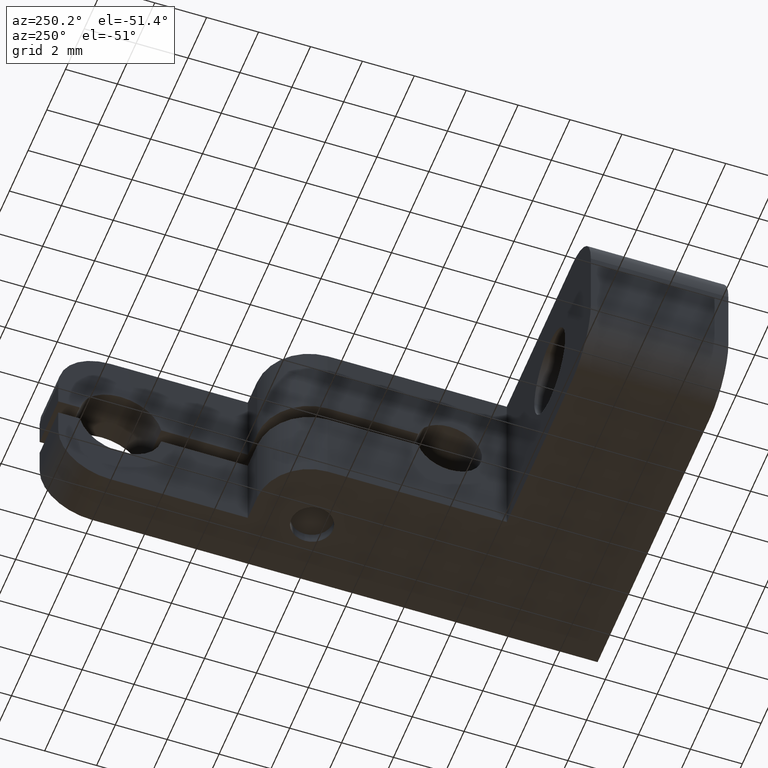
[diagram: clean part render]
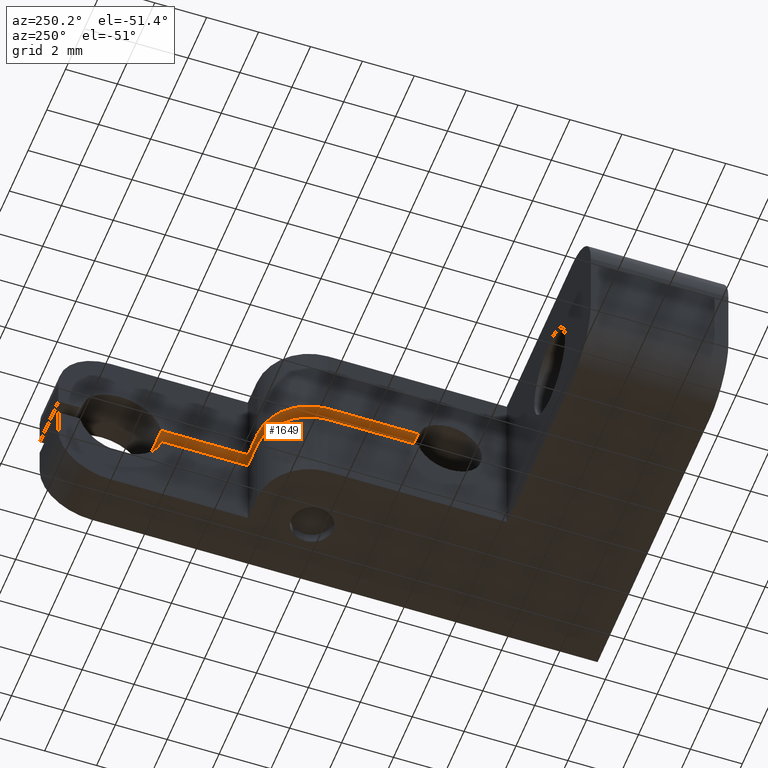
[diagram: same view with one face highlighted and labeled with its STEP entity id]
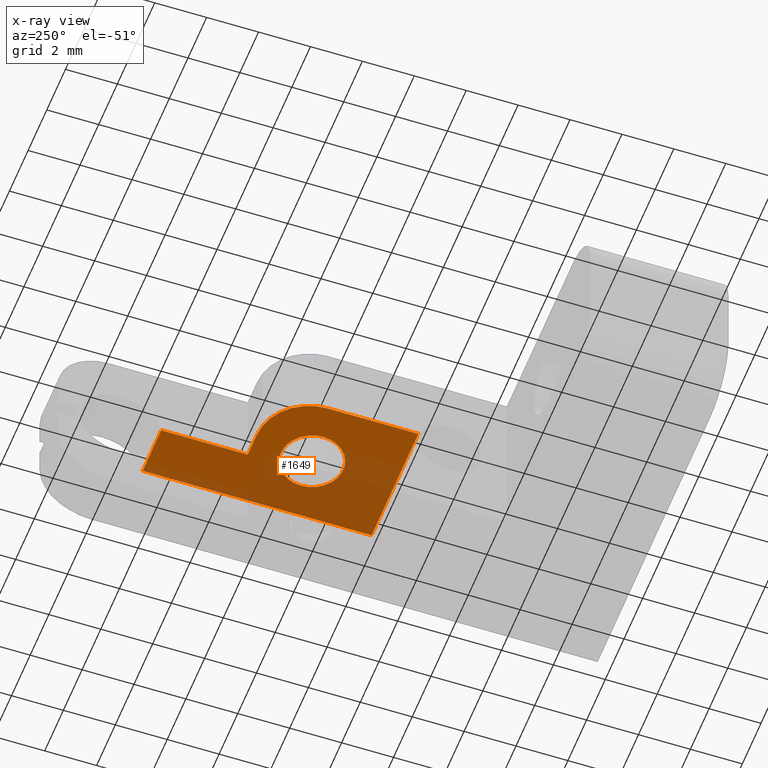
[diagram: x-ray of the same camera — body ghosted, the highlighted face saturated]
A machine part, auxiliary view. The second image highlights one B-rep face of the part: STEP entity #1649.
The next image is the same camera in x-ray: the body ghosted, the highlighted face saturated — about 47% of this face is hidden behind the body in this view.
In plain terms, the highlighted planar face has unit normal (0, -0, 1).
Its self-contained STEP definition (entity closure, byte-faithful):
#1 = EDGE_CURVE ( 'NONE', #49, #179, #164, .T. ) ;
#8 = ORIENTED_EDGE ( 'NONE', *, *, #1148, .T. ) ;
#25 = CARTESIAN_POINT ( 'NONE',  ( -5.000000000000000888, 12.19999999999999929, 0.3199999999999991740 ) ) ;
#49 = VERTEX_POINT ( 'NONE', #1328 ) ;
#103 = CARTESIAN_POINT ( 'NONE',  ( -14.00099999999999945, 17.53232656461877070, 0.3199999999999997291 ) ) ;
#117 = EDGE_LOOP ( 'NONE', ( #8, #363, #1947, #1785, #1538, #842, #982 ) ) ;
#150 = DIRECTION ( 'NONE',  ( 0.000000000000000000, -1.000000000000000000, -1.356136956839420588E-16 ) ) ;
#157 = CARTESIAN_POINT ( 'NONE',  ( -1.999999999999998224, 14.19999999999999929, 0.3199999999999994515 ) ) ;
#164 = LINE ( 'NONE', #1851, #2059 ) ;
#179 = VERTEX_POINT ( 'NONE', #2108 ) ;
#245 = CARTESIAN_POINT ( 'NONE',  ( -2.500000000000000444, 11.90000000000000036, 0.3199999999999991185 ) ) ;
#258 = CIRCLE ( 'NONE', #1379, 2.000000000000000000 ) ;
#270 = CARTESIAN_POINT ( 'NONE',  ( -14.00099999999999945, 14.19999999999999929, 0.3199999999999994515 ) ) ;
#363 = ORIENTED_EDGE ( 'NONE', *, *, #1786, .T. ) ;
#368 = CARTESIAN_POINT ( 'NONE',  ( -14.00099999999999945, 8.708345976945343736, 0.3199999999999985634 ) ) ;
#399 = VERTEX_POINT ( 'NONE', #1470 ) ;
#443 = DIRECTION ( 'NONE',  ( 0.000000000000000000, -1.000000000000000000, -1.356136956839420588E-16 ) ) ;
#466 = DIRECTION ( 'NONE',  ( 0.000000000000000000, -1.356136956839420588E-16, 1.000000000000000000 ) ) ;
#516 = AXIS2_PLACEMENT_3D ( 'NONE', #742, #905, #1259 ) ;
#563 = CARTESIAN_POINT ( 'NONE',  ( -5.000000000000000888, 8.708345976945343736, 0.3199999999999985079 ) ) ;
#593 = ORIENTED_EDGE ( 'NONE', *, *, #706, .T. ) ;
#597 = VERTEX_POINT ( 'NONE', #563 ) ;
#610 = EDGE_CURVE ( 'NONE', #597, #179, #1707, .T. ) ;
#617 = VECTOR ( 'NONE', #1921, 1000.000000000000000 ) ;
#653 = DIRECTION ( 'NONE',  ( -1.000000000000000000, 0.000000000000000000, 0.000000000000000000 ) ) ;
#654 = CIRCLE ( 'NONE', #516, 1.199999999999999734 ) ;
#671 = DIRECTION ( 'NONE',  ( -1.188166764367676342E-16, 1.000000000000000000, 1.356136956839420588E-16 ) ) ;
#706 = EDGE_CURVE ( 'NONE', #1810, #1112, #654, .T. ) ;
#742 = CARTESIAN_POINT ( 'NONE',  ( -2.500000000000000444, 11.90000000000000036, 0.3199999999999991185 ) ) ;
#750 = EDGE_CURVE ( 'NONE', #399, #1385, #1802, .T. ) ;
#768 = VECTOR ( 'NONE', #671, 1000.000000000000000 ) ;
#777 = VERTEX_POINT ( 'NONE', #1792 ) ;
#813 = VECTOR ( 'NONE', #1653, 1000.000000000000000 ) ;
#840 = CARTESIAN_POINT ( 'NONE',  ( -2.000000000000000000, 21.50000000000000000, 0.3200000000000003952 ) ) ;
#842 = ORIENTED_EDGE ( 'NONE', *, *, #1, .T. ) ;
#860 = DIRECTION ( 'NONE',  ( -0.000000000000000000, 1.356136956839420588E-16, -1.000000000000000000 ) ) ;
#905 = DIRECTION ( 'NONE',  ( 0.000000000000000000, -1.356136956839420588E-16, 1.000000000000000000 ) ) ;
#935 = VERTEX_POINT ( 'NONE', #25 ) ;
#982 = ORIENTED_EDGE ( 'NONE', *, *, #610, .F. ) ;
#985 = DIRECTION ( 'NONE',  ( 0.000000000000000000, -1.000000000000000000, -1.355252715606880789E-16 ) ) ;
#1027 = EDGE_CURVE ( 'NONE', #1112, #1810, #1863, .T. ) ;
#1094 = AXIS2_PLACEMENT_3D ( 'NONE', #1978, #466, #443 ) ;
#1112 = VERTEX_POINT ( 'NONE', #1986 ) ;
#1117 = DIRECTION ( 'NONE',  ( 0.000000000000000000, -1.356136956839420588E-16, 1.000000000000000000 ) ) ;
#1148 = EDGE_CURVE ( 'NONE', #597, #935, #2135, .T. ) ;
#1259 = DIRECTION ( 'NONE',  ( 0.000000000000000000, -1.000000000000000000, -1.355252715606880789E-16 ) ) ;
#1303 = FACE_BOUND ( 'NONE', #1956, .T. ) ;
#1318 = CARTESIAN_POINT ( 'NONE',  ( -3.000000000000000888, 12.19999999999999929, 0.3199999999999991185 ) ) ;
#1328 = CARTESIAN_POINT ( 'NONE',  ( 0.000000000000000000, 17.53232656461877070, 0.3199999999999998401 ) ) ;
#1379 = AXIS2_PLACEMENT_3D ( 'NONE', #1318, #860, #1873 ) ;
#1385 = VERTEX_POINT ( 'NONE', #157 ) ;
#1418 = DIRECTION ( 'NONE',  ( 1.000000000000000000, 0.000000000000000000, 0.000000000000000000 ) ) ;
#1470 = CARTESIAN_POINT ( 'NONE',  ( -3.000000000000000888, 14.19999999999999929, 0.3199999999999994515 ) ) ;
#1521 = LINE ( 'NONE', #840, #768 ) ;
#1538 = ORIENTED_EDGE ( 'NONE', *, *, #1692, .F. ) ;
#1586 = ORIENTED_EDGE ( 'NONE', *, *, #1027, .T. ) ;
#1649 = ADVANCED_FACE ( 'NONE', ( #1303, #1657 ), #1959, .F. ) ;
#1653 = DIRECTION ( 'NONE',  ( -0.000000000000000000, 1.000000000000000000, 1.356136956839420588E-16 ) ) ;
#1657 = FACE_OUTER_BOUND ( 'NONE', #117, .T. ) ;
#1692 = EDGE_CURVE ( 'NONE', #49, #777, #1971, .T. ) ;
#1707 = LINE ( 'NONE', #368, #617 ) ;
#1785 = ORIENTED_EDGE ( 'NONE', *, *, #1913, .T. ) ;
#1786 = EDGE_CURVE ( 'NONE', #935, #399, #258, .T. ) ;
#1792 = CARTESIAN_POINT ( 'NONE',  ( -2.000000000000000000, 17.53232656461877070, 0.3199999999999998401 ) ) ;
#1802 = LINE ( 'NONE', #270, #1821 ) ;
#1810 = VERTEX_POINT ( 'NONE', #1865 ) ;
#1821 = VECTOR ( 'NONE', #1418, 1000.000000000000000 ) ;
#1835 = CARTESIAN_POINT ( 'NONE',  ( -5.000000000000000888, 21.50000000000000000, 0.3200000000000003952 ) ) ;
#1851 = CARTESIAN_POINT ( 'NONE',  ( 0.000000000000000000, 21.50000000000000000, 0.3200000000000003952 ) ) ;
#1863 = CIRCLE ( 'NONE', #1980, 1.199999999999999734 ) ;
#1865 = CARTESIAN_POINT ( 'NONE',  ( -1.300000000000001155, 11.90000000000000036, 0.3199999999999991185 ) ) ;
#1873 = DIRECTION ( 'NONE',  ( 0.000000000000000000, -1.000000000000000000, -1.355252715606880543E-16 ) ) ;
#1913 = EDGE_CURVE ( 'NONE', #1385, #777, #1521, .T. ) ;
#1921 = DIRECTION ( 'NONE',  ( 1.000000000000000000, -0.000000000000000000, -0.000000000000000000 ) ) ;
#1947 = ORIENTED_EDGE ( 'NONE', *, *, #750, .T. ) ;
#1956 = EDGE_LOOP ( 'NONE', ( #593, #1586 ) ) ;
#1959 = PLANE ( 'NONE',  #1094 ) ;
#1971 = LINE ( 'NONE', #103, #2147 ) ;
#1978 = CARTESIAN_POINT ( 'NONE',  ( -14.00099999999999945, 21.50000000000000000, 0.3200000000000003952 ) ) ;
#1980 = AXIS2_PLACEMENT_3D ( 'NONE', #245, #1117, #985 ) ;
#1986 = CARTESIAN_POINT ( 'NONE',  ( -3.699999999999999734, 11.90000000000000036, 0.3199999999999991185 ) ) ;
#2059 = VECTOR ( 'NONE', #150, 1000.000000000000000 ) ;
#2108 = CARTESIAN_POINT ( 'NONE',  ( 0.000000000000000000, 8.708345976945343736, 0.3199999999999985634 ) ) ;
#2135 = LINE ( 'NONE', #1835, #813 ) ;
#2147 = VECTOR ( 'NONE', #653, 1000.000000000000000 ) ;